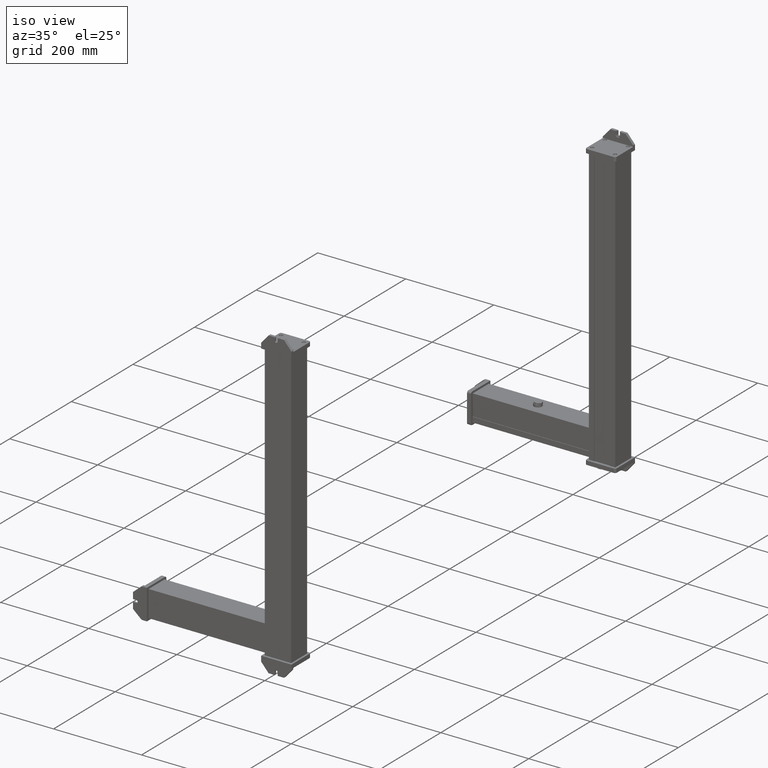
[diagram: clean part render]
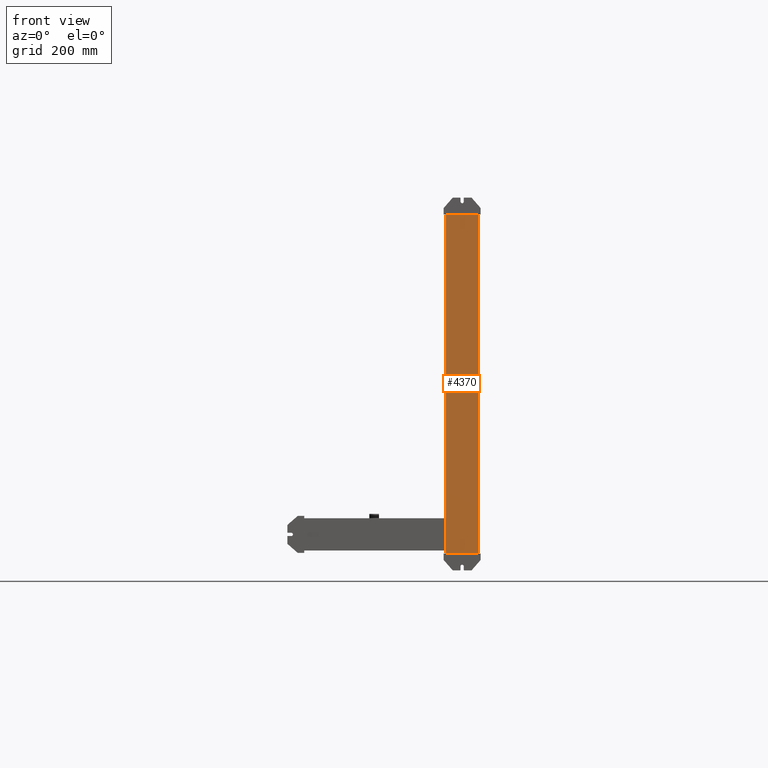
[diagram: tour spotlight — one face highlighted and labeled with its STEP entity id]
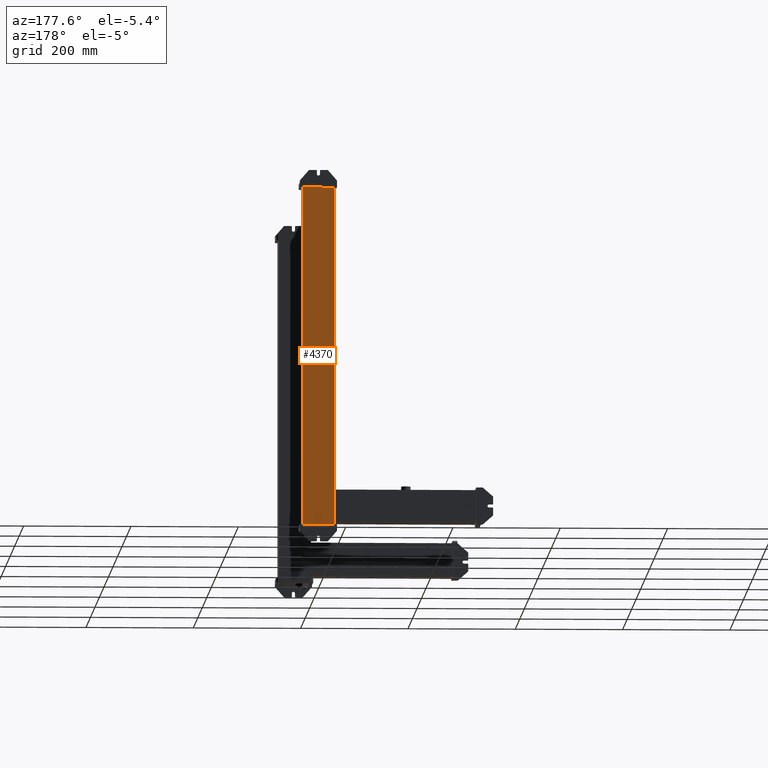
[diagram: tour spotlight — one face highlighted and labeled with its STEP entity id]
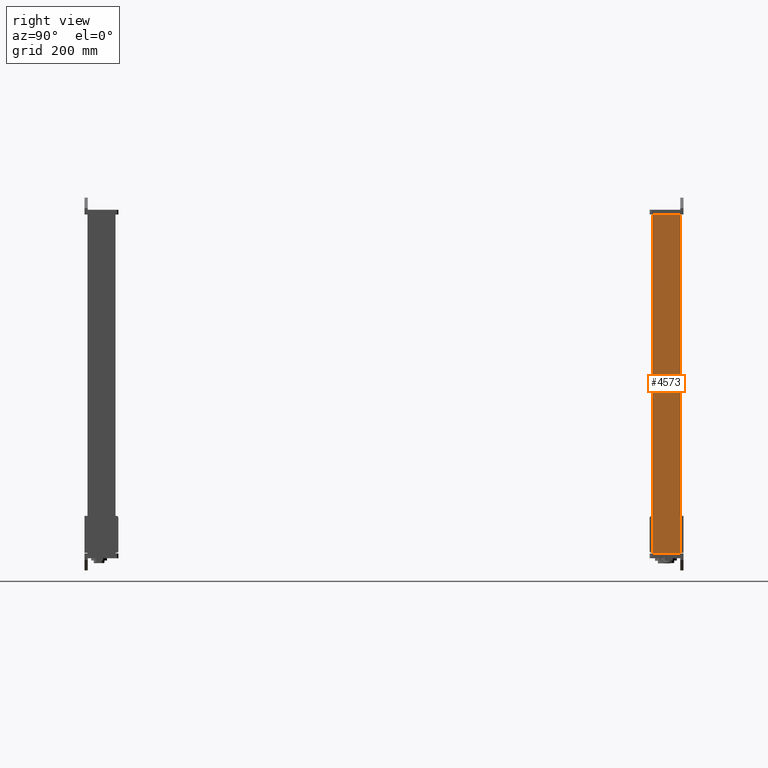
[diagram: tour spotlight — one face highlighted and labeled with its STEP entity id]
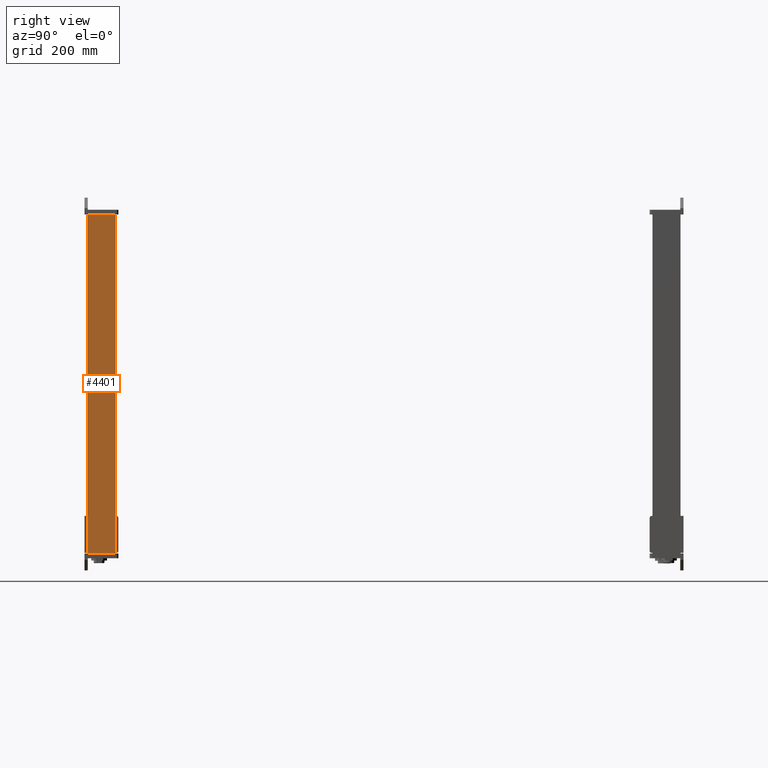
[diagram: tour spotlight — one face highlighted and labeled with its STEP entity id]
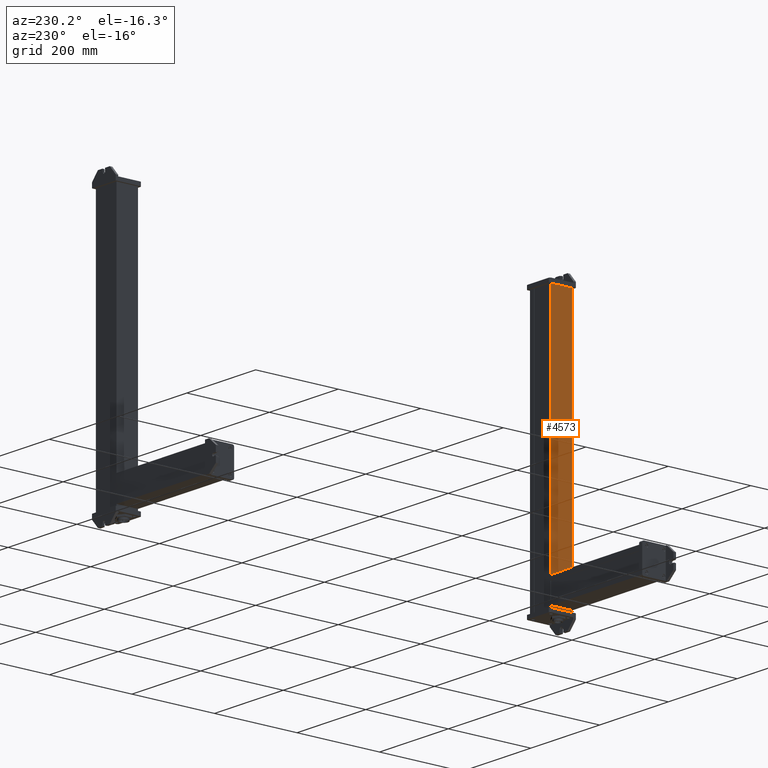
[diagram: tour spotlight — one face highlighted and labeled with its STEP entity id]
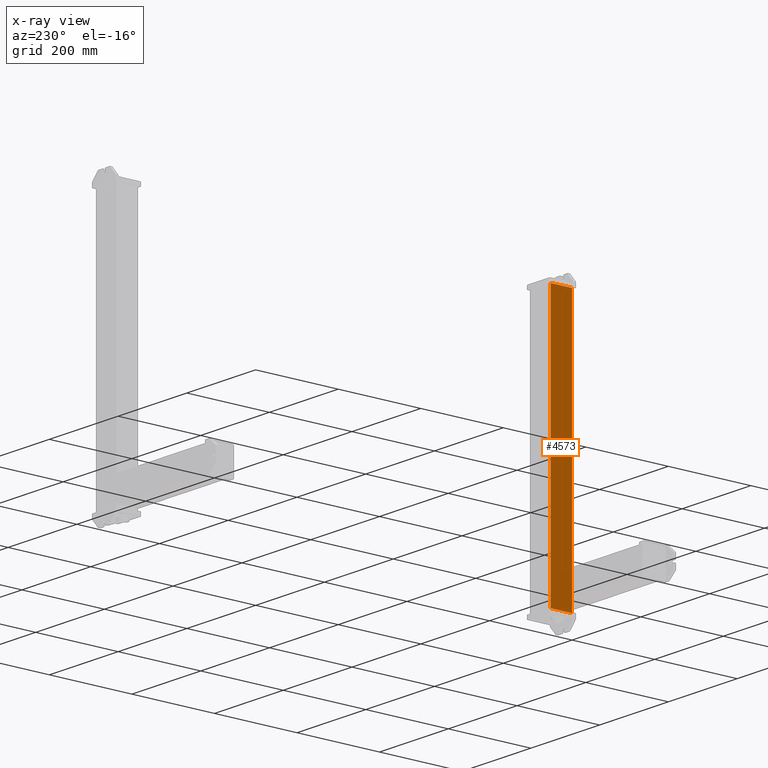
[diagram: x-ray of the same camera — body ghosted, this tour face saturated]
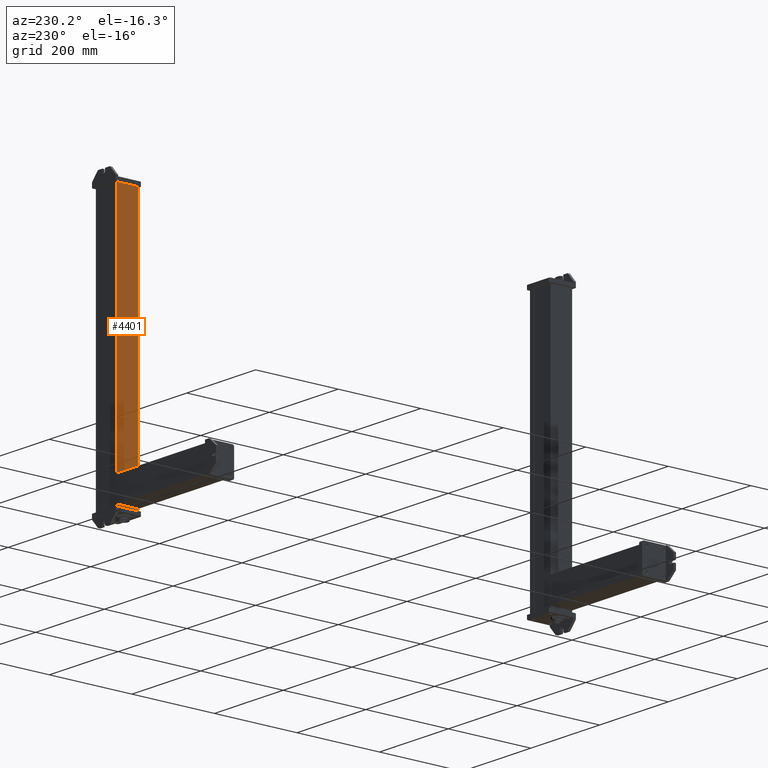
[diagram: tour spotlight — one face highlighted and labeled with its STEP entity id]
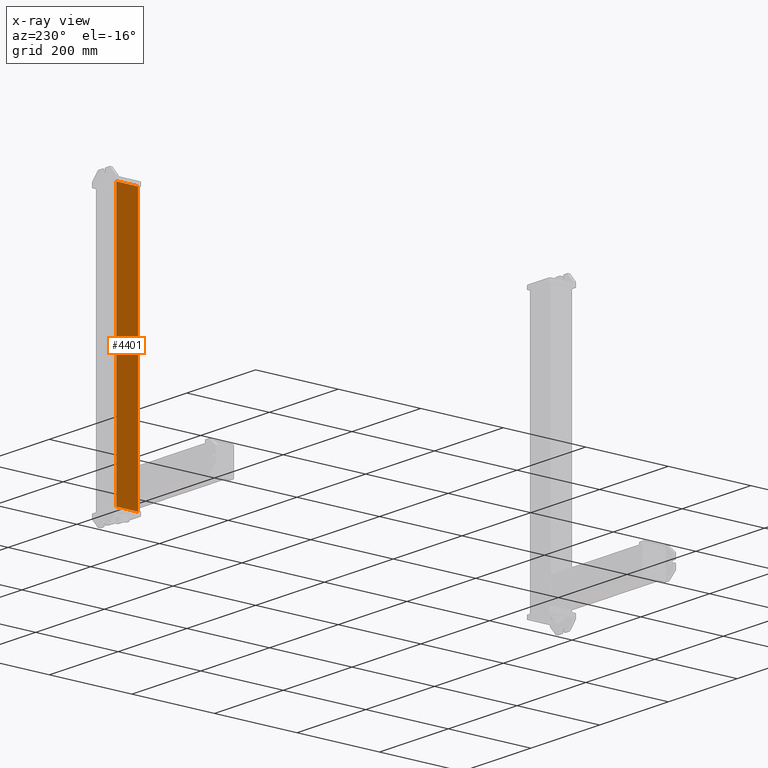
[diagram: x-ray of the same camera — body ghosted, this tour face saturated]
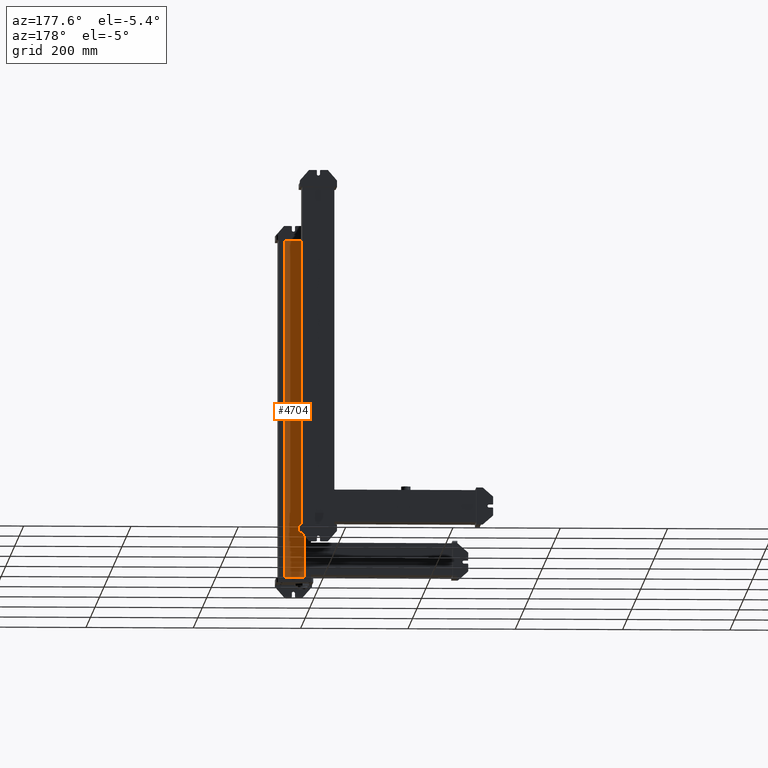
[diagram: tour spotlight — one face highlighted and labeled with its STEP entity id]
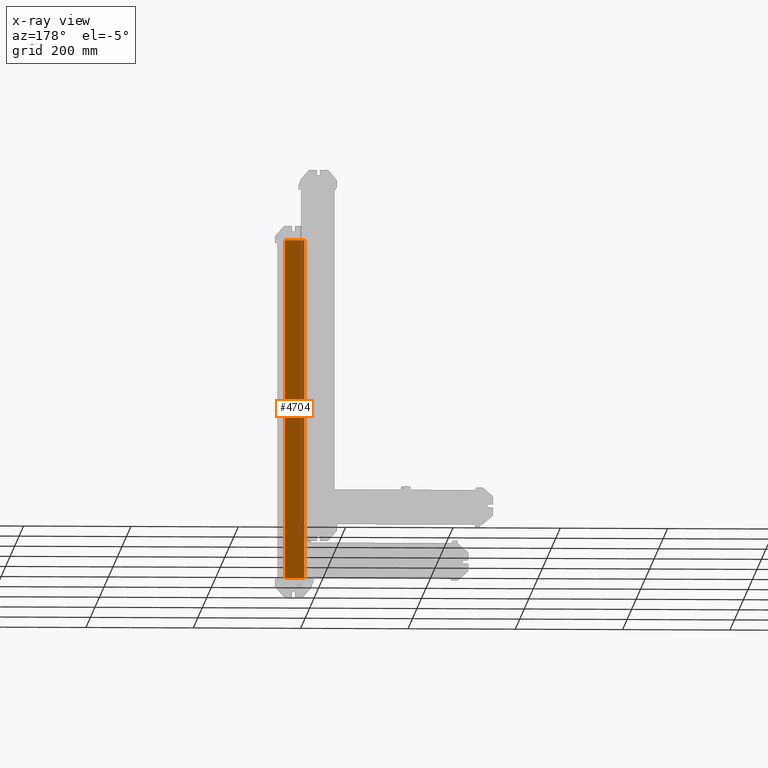
[diagram: x-ray of the same camera — body ghosted, this tour face saturated]
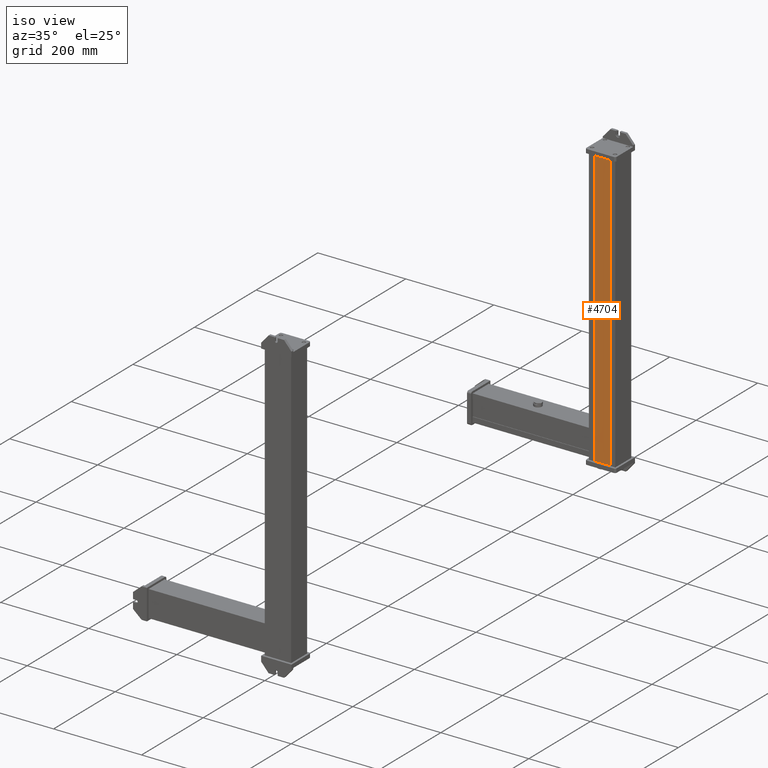
[diagram: tour spotlight — one face highlighted and labeled with its STEP entity id]
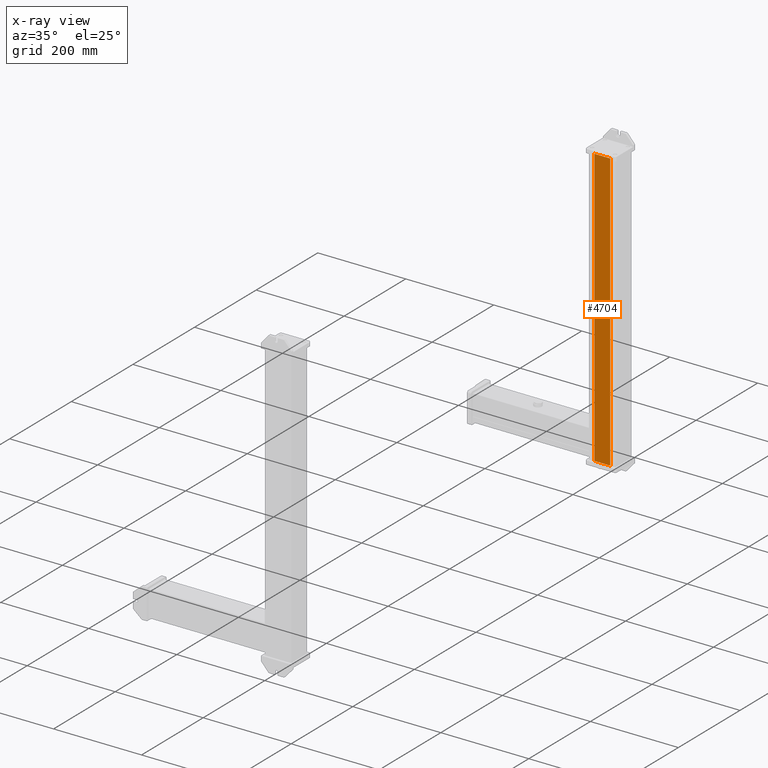
[diagram: x-ray of the same camera — body ghosted, this tour face saturated]
A machine part: a face-by-face anatomy tour. The part has 657 B-rep faces; the first image is the clean iso view, then the 8 largest visible faces are spotlighted one at a time (largest first), each with its STEP entity span.

Face 1 — front view, entity #4370. In plain terms, the highlighted planar face has unit normal (0, -1, 0).
Definition (entity closure, byte-faithful):
#4331=CARTESIAN_POINT('Axis2P3D Location',(0.,0.,0.)) ;
#4336=CARTESIAN_POINT('Line Origine',(0.,0.,315.5)) ;
#4340=CARTESIAN_POINT('Vertex',(0.,0.,0.)) ;
#4342=CARTESIAN_POINT('Vertex',(0.,0.,631.)) ;
#4345=CARTESIAN_POINT('Line Origine',(30.,0.,0.)) ;
#4349=CARTESIAN_POINT('Vertex',(60.,0.,0.)) ;
#4352=CARTESIAN_POINT('Line Origine',(60.,0.,315.5)) ;
#4356=CARTESIAN_POINT('Vertex',(60.,0.,631.)) ;
#4359=CARTESIAN_POINT('Line Origine',(30.,0.,631.)) ;
#4332=DIRECTION('Axis2P3D Direction',(0.,-1.,0.)) ;
#4333=DIRECTION('Axis2P3D XDirection',(1.,0.,0.)) ;
#4337=DIRECTION('Vector Direction',(0.,0.,1.)) ;
#4346=DIRECTION('Vector Direction',(1.,0.,0.)) ;
#4353=DIRECTION('Vector Direction',(0.,0.,1.)) ;
#4360=DIRECTION('Vector Direction',(1.,0.,0.)) ;
#4334=AXIS2_PLACEMENT_3D('Plane Axis2P3D',#4331,#4332,#4333) ;
#4365=ORIENTED_EDGE('',*,*,#4344,.F.) ;
#4366=ORIENTED_EDGE('',*,*,#4351,.T.) ;
#4367=ORIENTED_EDGE('',*,*,#4358,.T.) ;
#4368=ORIENTED_EDGE('',*,*,#4363,.F.) ;
#4338=VECTOR('Line Direction',#4337,1.) ;
#4347=VECTOR('Line Direction',#4346,1.) ;
#4354=VECTOR('Line Direction',#4353,1.) ;
#4361=VECTOR('Line Direction',#4360,1.) ;
#4370=ADVANCED_FACE('PartBody',(#4369),#4335,.T.) ;
#4344=EDGE_CURVE('',#4341,#4343,#4339,.T.) ;
#4351=EDGE_CURVE('',#4341,#4350,#4348,.T.) ;
#4358=EDGE_CURVE('',#4350,#4357,#4355,.T.) ;
#4363=EDGE_CURVE('',#4343,#4357,#4362,.T.) ;
#4364=EDGE_LOOP('',(#4365,#4366,#4367,#4368)) ;
#4369=FACE_OUTER_BOUND('',#4364,.T.) ;
#4339=LINE('Line',#4336,#4338) ;
#4348=LINE('Line',#4345,#4347) ;
#4355=LINE('Line',#4352,#4354) ;
#4362=LINE('Line',#4359,#4361) ;
#4335=PLANE('Plane',#4334) ;
#4341=VERTEX_POINT('',#4340) ;
#4343=VERTEX_POINT('',#4342) ;
#4350=VERTEX_POINT('',#4349) ;
#4357=VERTEX_POINT('',#4356) ;

Face 2 — auxiliary view, entity #4370. In plain terms, the highlighted planar face has unit normal (0, 1, 0).
Definition (entity closure, byte-faithful):
#4331=CARTESIAN_POINT('Axis2P3D Location',(0.,0.,0.)) ;
#4336=CARTESIAN_POINT('Line Origine',(0.,0.,315.5)) ;
#4340=CARTESIAN_POINT('Vertex',(0.,0.,0.)) ;
#4342=CARTESIAN_POINT('Vertex',(0.,0.,631.)) ;
#4345=CARTESIAN_POINT('Line Origine',(30.,0.,0.)) ;
#4349=CARTESIAN_POINT('Vertex',(60.,0.,0.)) ;
#4352=CARTESIAN_POINT('Line Origine',(60.,0.,315.5)) ;
#4356=CARTESIAN_POINT('Vertex',(60.,0.,631.)) ;
#4359=CARTESIAN_POINT('Line Origine',(30.,0.,631.)) ;
#4332=DIRECTION('Axis2P3D Direction',(0.,-1.,0.)) ;
#4333=DIRECTION('Axis2P3D XDirection',(1.,0.,0.)) ;
#4337=DIRECTION('Vector Direction',(0.,0.,1.)) ;
#4346=DIRECTION('Vector Direction',(1.,0.,0.)) ;
#4353=DIRECTION('Vector Direction',(0.,0.,1.)) ;
#4360=DIRECTION('Vector Direction',(1.,0.,0.)) ;
#4334=AXIS2_PLACEMENT_3D('Plane Axis2P3D',#4331,#4332,#4333) ;
#4365=ORIENTED_EDGE('',*,*,#4344,.F.) ;
#4366=ORIENTED_EDGE('',*,*,#4351,.T.) ;
#4367=ORIENTED_EDGE('',*,*,#4358,.T.) ;
#4368=ORIENTED_EDGE('',*,*,#4363,.F.) ;
#4338=VECTOR('Line Direction',#4337,1.) ;
#4347=VECTOR('Line Direction',#4346,1.) ;
#4354=VECTOR('Line Direction',#4353,1.) ;
#4361=VECTOR('Line Direction',#4360,1.) ;
#4370=ADVANCED_FACE('PartBody',(#4369),#4335,.T.) ;
#4344=EDGE_CURVE('',#4341,#4343,#4339,.T.) ;
#4351=EDGE_CURVE('',#4341,#4350,#4348,.T.) ;
#4358=EDGE_CURVE('',#4350,#4357,#4355,.T.) ;
#4363=EDGE_CURVE('',#4343,#4357,#4362,.T.) ;
#4364=EDGE_LOOP('',(#4365,#4366,#4367,#4368)) ;
#4369=FACE_OUTER_BOUND('',#4364,.T.) ;
#4339=LINE('Line',#4336,#4338) ;
#4348=LINE('Line',#4345,#4347) ;
#4355=LINE('Line',#4352,#4354) ;
#4362=LINE('Line',#4359,#4361) ;
#4335=PLANE('Plane',#4334) ;
#4341=VERTEX_POINT('',#4340) ;
#4343=VERTEX_POINT('',#4342) ;
#4350=VERTEX_POINT('',#4349) ;
#4357=VERTEX_POINT('',#4356) ;

Face 3 — right view, entity #4573. In plain terms, the highlighted planar face has unit normal (1, 0, 0).
Definition (entity closure, byte-faithful):
#4336=CARTESIAN_POINT('Line Origine',(0.,0.,315.5)) ;
#4340=CARTESIAN_POINT('Vertex',(0.,0.,0.)) ;
#4342=CARTESIAN_POINT('Vertex',(0.,0.,631.)) ;
#4530=CARTESIAN_POINT('Vertex',(3.5527136788E-015,52.,0.)) ;
#4533=CARTESIAN_POINT('Line Origine',(7.1054273576E-015,52.,315.5)) ;
#4537=CARTESIAN_POINT('Vertex',(3.5527136788E-015,52.,631.)) ;
#4552=CARTESIAN_POINT('Axis2P3D Location',(0.,52.,0.)) ;
#4557=CARTESIAN_POINT('Line Origine',(0.,26.,0.)) ;
#4562=CARTESIAN_POINT('Line Origine',(0.,26.,631.)) ;
#4337=DIRECTION('Vector Direction',(0.,0.,1.)) ;
#4534=DIRECTION('Vector Direction',(0.,0.,1.)) ;
#4553=DIRECTION('Axis2P3D Direction',(-1.,0.,0.)) ;
#4554=DIRECTION('Axis2P3D XDirection',(0.,-1.,0.)) ;
#4558=DIRECTION('Vector Direction',(0.,-1.,0.)) ;
#4563=DIRECTION('Vector Direction',(0.,-1.,0.)) ;
#4555=AXIS2_PLACEMENT_3D('Plane Axis2P3D',#4552,#4553,#4554) ;
#4568=ORIENTED_EDGE('',*,*,#4539,.F.) ;
#4569=ORIENTED_EDGE('',*,*,#4561,.T.) ;
#4570=ORIENTED_EDGE('',*,*,#4344,.T.) ;
#4571=ORIENTED_EDGE('',*,*,#4566,.F.) ;
#4338=VECTOR('Line Direction',#4337,1.) ;
#4535=VECTOR('Line Direction',#4534,1.) ;
#4559=VECTOR('Line Direction',#4558,1.) ;
#4564=VECTOR('Line Direction',#4563,1.) ;
#4573=ADVANCED_FACE('PartBody',(#4572),#4556,.T.) ;
#4344=EDGE_CURVE('',#4341,#4343,#4339,.T.) ;
#4539=EDGE_CURVE('',#4531,#4538,#4536,.T.) ;
#4561=EDGE_CURVE('',#4531,#4341,#4560,.T.) ;
#4566=EDGE_CURVE('',#4538,#4343,#4565,.T.) ;
#4567=EDGE_LOOP('',(#4568,#4569,#4570,#4571)) ;
#4572=FACE_OUTER_BOUND('',#4567,.T.) ;
#4339=LINE('Line',#4336,#4338) ;
#4536=LINE('Line',#4533,#4535) ;
#4560=LINE('Line',#4557,#4559) ;
#4565=LINE('Line',#4562,#4564) ;
#4556=PLANE('Plane',#4555) ;
#4341=VERTEX_POINT('',#4340) ;
#4343=VERTEX_POINT('',#4342) ;
#4531=VERTEX_POINT('',#4530) ;
#4538=VERTEX_POINT('',#4537) ;

Face 4 — right view, entity #4401. In plain terms, the highlighted planar face has unit normal (1, 0, 0).
Definition (entity closure, byte-faithful):
#4349=CARTESIAN_POINT('Vertex',(60.,0.,0.)) ;
#4352=CARTESIAN_POINT('Line Origine',(60.,0.,315.5)) ;
#4356=CARTESIAN_POINT('Vertex',(60.,0.,631.)) ;
#4371=CARTESIAN_POINT('Axis2P3D Location',(60.,4.1274730146E-015,0.)) ;
#4376=CARTESIAN_POINT('Line Origine',(60.,26.,0.)) ;
#4380=CARTESIAN_POINT('Vertex',(60.,52.,0.)) ;
#4383=CARTESIAN_POINT('Line Origine',(60.,52.,315.5)) ;
#4387=CARTESIAN_POINT('Vertex',(60.,52.,631.)) ;
#4390=CARTESIAN_POINT('Line Origine',(60.,26.,631.)) ;
#4353=DIRECTION('Vector Direction',(0.,0.,1.)) ;
#4372=DIRECTION('Axis2P3D Direction',(1.,0.,0.)) ;
#4373=DIRECTION('Axis2P3D XDirection',(0.,1.,0.)) ;
#4377=DIRECTION('Vector Direction',(0.,1.,0.)) ;
#4384=DIRECTION('Vector Direction',(0.,0.,1.)) ;
#4391=DIRECTION('Vector Direction',(0.,1.,0.)) ;
#4374=AXIS2_PLACEMENT_3D('Plane Axis2P3D',#4371,#4372,#4373) ;
#4396=ORIENTED_EDGE('',*,*,#4358,.F.) ;
#4397=ORIENTED_EDGE('',*,*,#4382,.T.) ;
#4398=ORIENTED_EDGE('',*,*,#4389,.T.) ;
#4399=ORIENTED_EDGE('',*,*,#4394,.F.) ;
#4354=VECTOR('Line Direction',#4353,1.) ;
#4378=VECTOR('Line Direction',#4377,1.) ;
#4385=VECTOR('Line Direction',#4384,1.) ;
#4392=VECTOR('Line Direction',#4391,1.) ;
#4401=ADVANCED_FACE('PartBody',(#4400),#4375,.T.) ;
#4358=EDGE_CURVE('',#4350,#4357,#4355,.T.) ;
#4382=EDGE_CURVE('',#4350,#4381,#4379,.T.) ;
#4389=EDGE_CURVE('',#4381,#4388,#4386,.T.) ;
#4394=EDGE_CURVE('',#4357,#4388,#4393,.T.) ;
#4395=EDGE_LOOP('',(#4396,#4397,#4398,#4399)) ;
#4400=FACE_OUTER_BOUND('',#4395,.T.) ;
#4355=LINE('Line',#4352,#4354) ;
#4379=LINE('Line',#4376,#4378) ;
#4386=LINE('Line',#4383,#4385) ;
#4393=LINE('Line',#4390,#4392) ;
#4375=PLANE('Plane',#4374) ;
#4350=VERTEX_POINT('',#4349) ;
#4357=VERTEX_POINT('',#4356) ;
#4381=VERTEX_POINT('',#4380) ;
#4388=VERTEX_POINT('',#4387) ;

Face 5 — auxiliary view, entity #4573. An x-ray twin of the same camera follows (body ghosted, this face saturated) — the face is partly hidden behind the body. In plain terms, the highlighted planar face has unit normal (-1, 0, 0).
Definition (entity closure, byte-faithful):
#4336=CARTESIAN_POINT('Line Origine',(0.,0.,315.5)) ;
#4340=CARTESIAN_POINT('Vertex',(0.,0.,0.)) ;
#4342=CARTESIAN_POINT('Vertex',(0.,0.,631.)) ;
#4530=CARTESIAN_POINT('Vertex',(3.5527136788E-015,52.,0.)) ;
#4533=CARTESIAN_POINT('Line Origine',(7.1054273576E-015,52.,315.5)) ;
#4537=CARTESIAN_POINT('Vertex',(3.5527136788E-015,52.,631.)) ;
#4552=CARTESIAN_POINT('Axis2P3D Location',(0.,52.,0.)) ;
#4557=CARTESIAN_POINT('Line Origine',(0.,26.,0.)) ;
#4562=CARTESIAN_POINT('Line Origine',(0.,26.,631.)) ;
#4337=DIRECTION('Vector Direction',(0.,0.,1.)) ;
#4534=DIRECTION('Vector Direction',(0.,0.,1.)) ;
#4553=DIRECTION('Axis2P3D Direction',(-1.,0.,0.)) ;
#4554=DIRECTION('Axis2P3D XDirection',(0.,-1.,0.)) ;
#4558=DIRECTION('Vector Direction',(0.,-1.,0.)) ;
#4563=DIRECTION('Vector Direction',(0.,-1.,0.)) ;
#4555=AXIS2_PLACEMENT_3D('Plane Axis2P3D',#4552,#4553,#4554) ;
#4568=ORIENTED_EDGE('',*,*,#4539,.F.) ;
#4569=ORIENTED_EDGE('',*,*,#4561,.T.) ;
#4570=ORIENTED_EDGE('',*,*,#4344,.T.) ;
#4571=ORIENTED_EDGE('',*,*,#4566,.F.) ;
#4338=VECTOR('Line Direction',#4337,1.) ;
#4535=VECTOR('Line Direction',#4534,1.) ;
#4559=VECTOR('Line Direction',#4558,1.) ;
#4564=VECTOR('Line Direction',#4563,1.) ;
#4573=ADVANCED_FACE('PartBody',(#4572),#4556,.T.) ;
#4344=EDGE_CURVE('',#4341,#4343,#4339,.T.) ;
#4539=EDGE_CURVE('',#4531,#4538,#4536,.T.) ;
#4561=EDGE_CURVE('',#4531,#4341,#4560,.T.) ;
#4566=EDGE_CURVE('',#4538,#4343,#4565,.T.) ;
#4567=EDGE_LOOP('',(#4568,#4569,#4570,#4571)) ;
#4572=FACE_OUTER_BOUND('',#4567,.T.) ;
#4339=LINE('Line',#4336,#4338) ;
#4536=LINE('Line',#4533,#4535) ;
#4560=LINE('Line',#4557,#4559) ;
#4565=LINE('Line',#4562,#4564) ;
#4556=PLANE('Plane',#4555) ;
#4341=VERTEX_POINT('',#4340) ;
#4343=VERTEX_POINT('',#4342) ;
#4531=VERTEX_POINT('',#4530) ;
#4538=VERTEX_POINT('',#4537) ;

Face 6 — auxiliary view, entity #4401. An x-ray twin of the same camera follows (body ghosted, this face saturated) — the face is partly hidden behind the body. In plain terms, the highlighted planar face has unit normal (-1, 0, 0).
Definition (entity closure, byte-faithful):
#4349=CARTESIAN_POINT('Vertex',(60.,0.,0.)) ;
#4352=CARTESIAN_POINT('Line Origine',(60.,0.,315.5)) ;
#4356=CARTESIAN_POINT('Vertex',(60.,0.,631.)) ;
#4371=CARTESIAN_POINT('Axis2P3D Location',(60.,4.1274730146E-015,0.)) ;
#4376=CARTESIAN_POINT('Line Origine',(60.,26.,0.)) ;
#4380=CARTESIAN_POINT('Vertex',(60.,52.,0.)) ;
#4383=CARTESIAN_POINT('Line Origine',(60.,52.,315.5)) ;
#4387=CARTESIAN_POINT('Vertex',(60.,52.,631.)) ;
#4390=CARTESIAN_POINT('Line Origine',(60.,26.,631.)) ;
#4353=DIRECTION('Vector Direction',(0.,0.,1.)) ;
#4372=DIRECTION('Axis2P3D Direction',(1.,0.,0.)) ;
#4373=DIRECTION('Axis2P3D XDirection',(0.,1.,0.)) ;
#4377=DIRECTION('Vector Direction',(0.,1.,0.)) ;
#4384=DIRECTION('Vector Direction',(0.,0.,1.)) ;
#4391=DIRECTION('Vector Direction',(0.,1.,0.)) ;
#4374=AXIS2_PLACEMENT_3D('Plane Axis2P3D',#4371,#4372,#4373) ;
#4396=ORIENTED_EDGE('',*,*,#4358,.F.) ;
#4397=ORIENTED_EDGE('',*,*,#4382,.T.) ;
#4398=ORIENTED_EDGE('',*,*,#4389,.T.) ;
#4399=ORIENTED_EDGE('',*,*,#4394,.F.) ;
#4354=VECTOR('Line Direction',#4353,1.) ;
#4378=VECTOR('Line Direction',#4377,1.) ;
#4385=VECTOR('Line Direction',#4384,1.) ;
#4392=VECTOR('Line Direction',#4391,1.) ;
#4401=ADVANCED_FACE('PartBody',(#4400),#4375,.T.) ;
#4358=EDGE_CURVE('',#4350,#4357,#4355,.T.) ;
#4382=EDGE_CURVE('',#4350,#4381,#4379,.T.) ;
#4389=EDGE_CURVE('',#4381,#4388,#4386,.T.) ;
#4394=EDGE_CURVE('',#4357,#4388,#4393,.T.) ;
#4395=EDGE_LOOP('',(#4396,#4397,#4398,#4399)) ;
#4400=FACE_OUTER_BOUND('',#4395,.T.) ;
#4355=LINE('Line',#4352,#4354) ;
#4379=LINE('Line',#4376,#4378) ;
#4386=LINE('Line',#4383,#4385) ;
#4393=LINE('Line',#4390,#4392) ;
#4375=PLANE('Plane',#4374) ;
#4350=VERTEX_POINT('',#4349) ;
#4357=VERTEX_POINT('',#4356) ;
#4381=VERTEX_POINT('',#4380) ;
#4388=VERTEX_POINT('',#4387) ;

Face 7 — auxiliary view, entity #4704. An x-ray twin of the same camera follows (body ghosted, this face saturated) — the face is partly hidden behind the body. In plain terms, the highlighted planar face has unit normal (0, 1, 0).
Definition (entity closure, byte-faithful):
#4621=CARTESIAN_POINT('Vertex',(12.,51.,0.)) ;
#4624=CARTESIAN_POINT('Line Origine',(30.,51.,0.)) ;
#4628=CARTESIAN_POINT('Vertex',(48.,51.,0.)) ;
#4661=CARTESIAN_POINT('Vertex',(12.,51.,631.)) ;
#4664=CARTESIAN_POINT('Line Origine',(12.,51.,315.5)) ;
#4681=CARTESIAN_POINT('Axis2P3D Location',(48.,51.,0.)) ;
#4686=CARTESIAN_POINT('Line Origine',(48.,51.,315.5)) ;
#4690=CARTESIAN_POINT('Vertex',(48.,51.,631.)) ;
#4693=CARTESIAN_POINT('Line Origine',(30.,51.,631.)) ;
#4625=DIRECTION('Vector Direction',(-1.,0.,0.)) ;
#4665=DIRECTION('Vector Direction',(0.,0.,1.)) ;
#4682=DIRECTION('Axis2P3D Direction',(0.,1.,-0.)) ;
#4683=DIRECTION('Axis2P3D XDirection',(-1.,0.,0.)) ;
#4687=DIRECTION('Vector Direction',(0.,0.,1.)) ;
#4694=DIRECTION('Vector Direction',(-1.,0.,0.)) ;
#4684=AXIS2_PLACEMENT_3D('Plane Axis2P3D',#4681,#4682,#4683) ;
#4699=ORIENTED_EDGE('',*,*,#4692,.F.) ;
#4700=ORIENTED_EDGE('',*,*,#4630,.F.) ;
#4701=ORIENTED_EDGE('',*,*,#4668,.T.) ;
#4702=ORIENTED_EDGE('',*,*,#4697,.F.) ;
#4626=VECTOR('Line Direction',#4625,1.) ;
#4666=VECTOR('Line Direction',#4665,1.) ;
#4688=VECTOR('Line Direction',#4687,1.) ;
#4695=VECTOR('Line Direction',#4694,1.) ;
#4704=ADVANCED_FACE('Body.2',(#4703),#4685,.T.) ;
#4630=EDGE_CURVE('',#4622,#4629,#4627,.F.) ;
#4668=EDGE_CURVE('',#4622,#4662,#4667,.T.) ;
#4692=EDGE_CURVE('',#4629,#4691,#4689,.T.) ;
#4697=EDGE_CURVE('',#4691,#4662,#4696,.T.) ;
#4698=EDGE_LOOP('',(#4699,#4700,#4701,#4702)) ;
#4703=FACE_OUTER_BOUND('',#4698,.T.) ;
#4627=LINE('Line',#4624,#4626) ;
#4667=LINE('Line',#4664,#4666) ;
#4689=LINE('Line',#4686,#4688) ;
#4696=LINE('Line',#4693,#4695) ;
#4685=PLANE('Plane',#4684) ;
#4622=VERTEX_POINT('',#4621) ;
#4629=VERTEX_POINT('',#4628) ;
#4662=VERTEX_POINT('',#4661) ;
#4691=VERTEX_POINT('',#4690) ;

Face 8 — iso view, entity #4704. An x-ray twin of the same camera follows (body ghosted, this face saturated) — the face is partly hidden behind the body. In plain terms, the highlighted planar face has unit normal (0, -1, 0).
Definition (entity closure, byte-faithful):
#4621=CARTESIAN_POINT('Vertex',(12.,51.,0.)) ;
#4624=CARTESIAN_POINT('Line Origine',(30.,51.,0.)) ;
#4628=CARTESIAN_POINT('Vertex',(48.,51.,0.)) ;
#4661=CARTESIAN_POINT('Vertex',(12.,51.,631.)) ;
#4664=CARTESIAN_POINT('Line Origine',(12.,51.,315.5)) ;
#4681=CARTESIAN_POINT('Axis2P3D Location',(48.,51.,0.)) ;
#4686=CARTESIAN_POINT('Line Origine',(48.,51.,315.5)) ;
#4690=CARTESIAN_POINT('Vertex',(48.,51.,631.)) ;
#4693=CARTESIAN_POINT('Line Origine',(30.,51.,631.)) ;
#4625=DIRECTION('Vector Direction',(-1.,0.,0.)) ;
#4665=DIRECTION('Vector Direction',(0.,0.,1.)) ;
#4682=DIRECTION('Axis2P3D Direction',(0.,1.,-0.)) ;
#4683=DIRECTION('Axis2P3D XDirection',(-1.,0.,0.)) ;
#4687=DIRECTION('Vector Direction',(0.,0.,1.)) ;
#4694=DIRECTION('Vector Direction',(-1.,0.,0.)) ;
#4684=AXIS2_PLACEMENT_3D('Plane Axis2P3D',#4681,#4682,#4683) ;
#4699=ORIENTED_EDGE('',*,*,#4692,.F.) ;
#4700=ORIENTED_EDGE('',*,*,#4630,.F.) ;
#4701=ORIENTED_EDGE('',*,*,#4668,.T.) ;
#4702=ORIENTED_EDGE('',*,*,#4697,.F.) ;
#4626=VECTOR('Line Direction',#4625,1.) ;
#4666=VECTOR('Line Direction',#4665,1.) ;
#4688=VECTOR('Line Direction',#4687,1.) ;
#4695=VECTOR('Line Direction',#4694,1.) ;
#4704=ADVANCED_FACE('Body.2',(#4703),#4685,.T.) ;
#4630=EDGE_CURVE('',#4622,#4629,#4627,.F.) ;
#4668=EDGE_CURVE('',#4622,#4662,#4667,.T.) ;
#4692=EDGE_CURVE('',#4629,#4691,#4689,.T.) ;
#4697=EDGE_CURVE('',#4691,#4662,#4696,.T.) ;
#4698=EDGE_LOOP('',(#4699,#4700,#4701,#4702)) ;
#4703=FACE_OUTER_BOUND('',#4698,.T.) ;
#4627=LINE('Line',#4624,#4626) ;
#4667=LINE('Line',#4664,#4666) ;
#4689=LINE('Line',#4686,#4688) ;
#4696=LINE('Line',#4693,#4695) ;
#4685=PLANE('Plane',#4684) ;
#4622=VERTEX_POINT('',#4621) ;
#4629=VERTEX_POINT('',#4628) ;
#4662=VERTEX_POINT('',#4661) ;
#4691=VERTEX_POINT('',#4690) ;